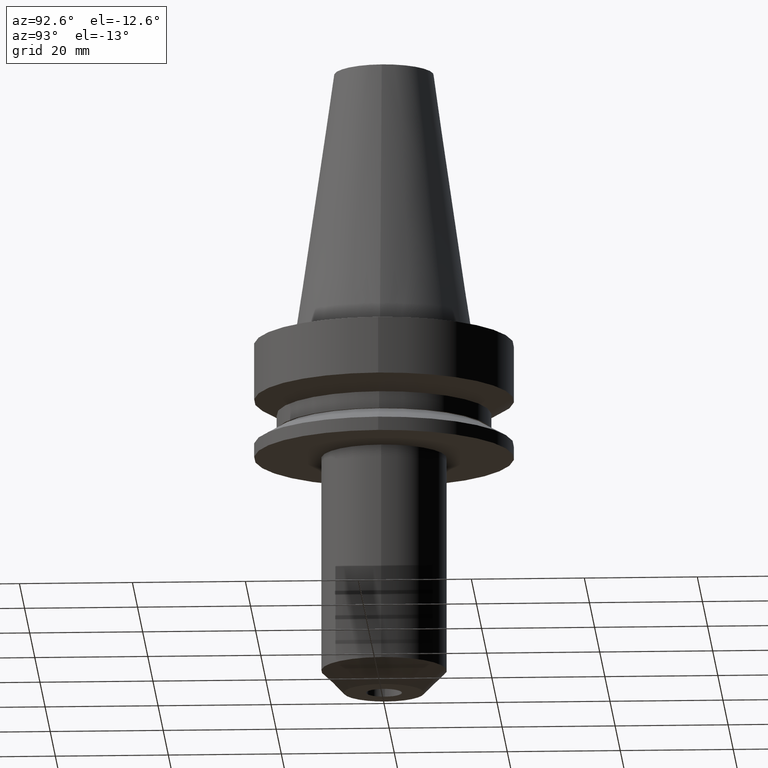
[diagram: clean part render]
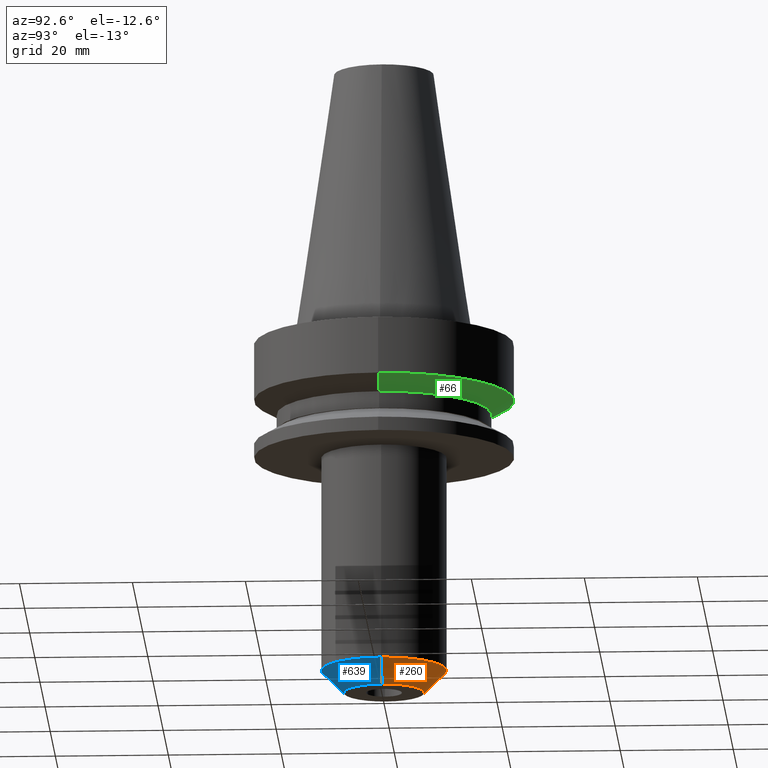
[diagram: same view with three faces highlighted in distinct colors, each labeled with its STEP entity id]
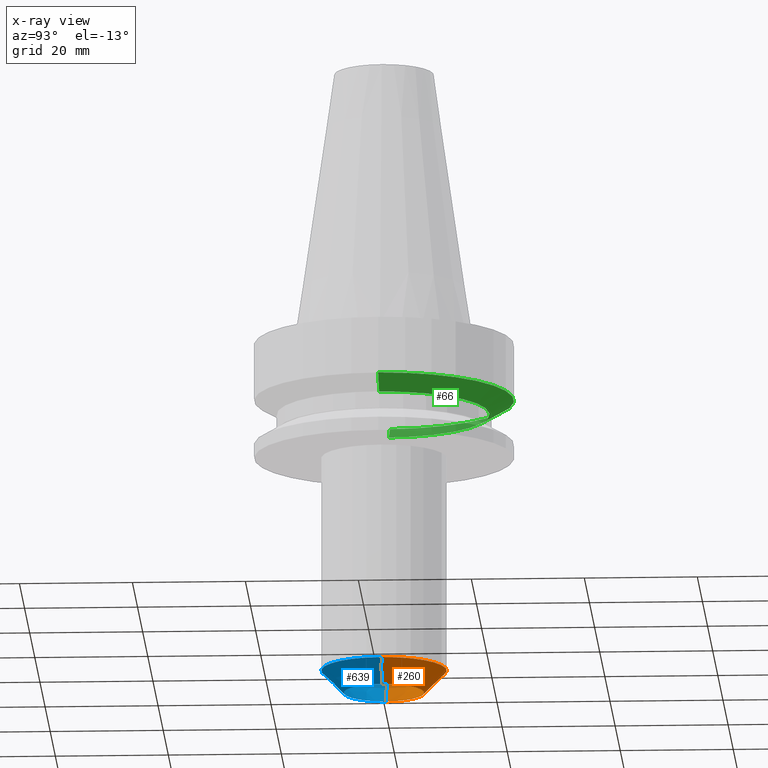
[diagram: x-ray of the same camera — body ghosted, the three highlighted faces saturated]
A machine part, auxiliary view with three faces highlighted in distinct colors.
The next image is the same camera in x-ray (body ghosted, the three faces saturated) — at least one of them is partly hidden behind the body in this view.
Their STEP definitions:

[orange] entity #260 — the highlighted conical surface has half-angle 45 deg.
#34 = EDGE_CURVE ( 'NONE', #316, #606, #647, .T. ) ;
#65 = VERTEX_POINT ( 'NONE', #102 ) ;
#71 = LINE ( 'NONE', #720, #651 ) ;
#99 = EDGE_CURVE ( 'NONE', #621, #606, #618, .T. ) ;
#102 = CARTESIAN_POINT ( 'NONE',  ( 7.112499999999986500, 0.000000000000000000, -63.50000000000000000 ) ) ;
#147 = DIRECTION ( 'NONE',  ( -0.000000000000000000, -0.000000000000000000, 1.000000000000000000 ) ) ;
#150 = DIRECTION ( 'NONE',  ( 1.000000000000000000, 0.000000000000000000, 0.000000000000000000 ) ) ;
#175 = CARTESIAN_POINT ( 'NONE',  ( 0.000000000000000000, 0.000000000000000000, -63.50000000000000000 ) ) ;
#194 = EDGE_CURVE ( 'NONE', #65, #316, #441, .T. ) ;
#196 = CARTESIAN_POINT ( 'NONE',  ( -7.112499999999986500, 1.115959395723024748E-15, -63.50000000000000000 ) ) ;
#220 = AXIS2_PLACEMENT_3D ( 'NONE', #771, #234, #523 ) ;
#231 = CONICAL_SURFACE ( 'NONE', #683, 7.112499999999986500, 0.7853981633974496113 ) ;
#234 = DIRECTION ( 'NONE',  ( -0.000000000000000000, -0.000000000000000000, 1.000000000000000000 ) ) ;
#245 = CARTESIAN_POINT ( 'NONE',  ( 11.11250000000000071, 0.000000000000000000, -59.50000000000000000 ) ) ;
#250 = DIRECTION ( 'NONE',  ( 1.000000000000000000, 0.000000000000000000, 0.000000000000000000 ) ) ;
#260 = ADVANCED_FACE ( 'NONE', ( #504 ), #231, .T. ) ;
#263 = ORIENTED_EDGE ( 'NONE', *, *, #34, .T. ) ;
#304 = AXIS2_PLACEMENT_3D ( 'NONE', #175, #714, #250 ) ;
#316 = VERTEX_POINT ( 'NONE', #196 ) ;
#324 = ORIENTED_EDGE ( 'NONE', *, *, #625, .F. ) ;
#366 = ORIENTED_EDGE ( 'NONE', *, *, #194, .T. ) ;
#441 = CIRCLE ( 'NONE', #304, 7.112499999999986500 ) ;
#504 = FACE_OUTER_BOUND ( 'NONE', #773, .T. ) ;
#523 = DIRECTION ( 'NONE',  ( 1.000000000000000000, 0.000000000000000000, 0.000000000000000000 ) ) ;
#550 = DIRECTION ( 'NONE',  ( 0.7071067811865484609, 0.000000000000000000, 0.7071067811865465735 ) ) ;
#560 = CARTESIAN_POINT ( 'NONE',  ( 0.000000000000000000, 0.000000000000000000, -63.50000000000000000 ) ) ;
#564 = ORIENTED_EDGE ( 'NONE', *, *, #99, .F. ) ;
#603 = CARTESIAN_POINT ( 'NONE',  ( -11.11250000000000071, 1.360888755552496622E-15, -59.50000000000000000 ) ) ;
#605 = VECTOR ( 'NONE', #635, 1000.000000000000000 ) ;
#606 = VERTEX_POINT ( 'NONE', #603 ) ;
#618 = CIRCLE ( 'NONE', #220, 11.11250000000000071 ) ;
#621 = VERTEX_POINT ( 'NONE', #245 ) ;
#625 = EDGE_CURVE ( 'NONE', #65, #621, #71, .T. ) ;
#635 = DIRECTION ( 'NONE',  ( -0.7071067811865484609, 8.659560562354943952E-17, 0.7071067811865465735 ) ) ;
#647 = LINE ( 'NONE', #712, #605 ) ;
#651 = VECTOR ( 'NONE', #550, 1000.000000000000000 ) ;
#683 = AXIS2_PLACEMENT_3D ( 'NONE', #560, #147, #150 ) ;
#712 = CARTESIAN_POINT ( 'NONE',  ( -7.112499999999986500, 8.710300358935532679E-16, -63.50000000000000000 ) ) ;
#714 = DIRECTION ( 'NONE',  ( -0.000000000000000000, -0.000000000000000000, 1.000000000000000000 ) ) ;
#720 = CARTESIAN_POINT ( 'NONE',  ( 7.112499999999986500, 0.000000000000000000, -63.50000000000000000 ) ) ;
#771 = CARTESIAN_POINT ( 'NONE',  ( 0.000000000000000000, 0.000000000000000000, -59.50000000000000000 ) ) ;
#773 = EDGE_LOOP ( 'NONE', ( #366, #263, #564, #324 ) ) ;

[blue] entity #639 — the highlighted conical surface has half-angle 45 deg.
#1 = ORIENTED_EDGE ( 'NONE', *, *, #625, .T. ) ;
#34 = EDGE_CURVE ( 'NONE', #316, #606, #647, .T. ) ;
#64 = CARTESIAN_POINT ( 'NONE',  ( 0.000000000000000000, 0.000000000000000000, -59.50000000000000000 ) ) ;
#65 = VERTEX_POINT ( 'NONE', #102 ) ;
#71 = LINE ( 'NONE', #720, #651 ) ;
#73 = DIRECTION ( 'NONE',  ( 1.000000000000000000, 0.000000000000000000, 0.000000000000000000 ) ) ;
#77 = DIRECTION ( 'NONE',  ( -0.000000000000000000, -0.000000000000000000, 1.000000000000000000 ) ) ;
#86 = CIRCLE ( 'NONE', #380, 11.11250000000000071 ) ;
#102 = CARTESIAN_POINT ( 'NONE',  ( 7.112499999999986500, 0.000000000000000000, -63.50000000000000000 ) ) ;
#115 = ORIENTED_EDGE ( 'NONE', *, *, #166, .T. ) ;
#166 = EDGE_CURVE ( 'NONE', #316, #65, #707, .T. ) ;
#196 = CARTESIAN_POINT ( 'NONE',  ( -7.112499999999986500, 1.115959395723024748E-15, -63.50000000000000000 ) ) ;
#235 = EDGE_CURVE ( 'NONE', #606, #621, #86, .T. ) ;
#245 = CARTESIAN_POINT ( 'NONE',  ( 11.11250000000000071, 0.000000000000000000, -59.50000000000000000 ) ) ;
#267 = AXIS2_PLACEMENT_3D ( 'NONE', #306, #609, #547 ) ;
#297 = DIRECTION ( 'NONE',  ( -0.000000000000000000, -0.000000000000000000, 1.000000000000000000 ) ) ;
#306 = CARTESIAN_POINT ( 'NONE',  ( 0.000000000000000000, 0.000000000000000000, -63.50000000000000000 ) ) ;
#316 = VERTEX_POINT ( 'NONE', #196 ) ;
#380 = AXIS2_PLACEMENT_3D ( 'NONE', #64, #297, #423 ) ;
#423 = DIRECTION ( 'NONE',  ( 1.000000000000000000, 0.000000000000000000, 0.000000000000000000 ) ) ;
#465 = AXIS2_PLACEMENT_3D ( 'NONE', #544, #77, #73 ) ;
#510 = ORIENTED_EDGE ( 'NONE', *, *, #235, .F. ) ;
#516 = EDGE_LOOP ( 'NONE', ( #613, #115, #1, #510 ) ) ;
#544 = CARTESIAN_POINT ( 'NONE',  ( 0.000000000000000000, 0.000000000000000000, -63.50000000000000000 ) ) ;
#547 = DIRECTION ( 'NONE',  ( 1.000000000000000000, 0.000000000000000000, 0.000000000000000000 ) ) ;
#550 = DIRECTION ( 'NONE',  ( 0.7071067811865484609, 0.000000000000000000, 0.7071067811865465735 ) ) ;
#603 = CARTESIAN_POINT ( 'NONE',  ( -11.11250000000000071, 1.360888755552496622E-15, -59.50000000000000000 ) ) ;
#605 = VECTOR ( 'NONE', #635, 1000.000000000000000 ) ;
#606 = VERTEX_POINT ( 'NONE', #603 ) ;
#609 = DIRECTION ( 'NONE',  ( -0.000000000000000000, -0.000000000000000000, 1.000000000000000000 ) ) ;
#613 = ORIENTED_EDGE ( 'NONE', *, *, #34, .F. ) ;
#621 = VERTEX_POINT ( 'NONE', #245 ) ;
#625 = EDGE_CURVE ( 'NONE', #65, #621, #71, .T. ) ;
#635 = DIRECTION ( 'NONE',  ( -0.7071067811865484609, 8.659560562354943952E-17, 0.7071067811865465735 ) ) ;
#639 = ADVANCED_FACE ( 'NONE', ( #662 ), #727, .T. ) ;
#647 = LINE ( 'NONE', #712, #605 ) ;
#651 = VECTOR ( 'NONE', #550, 1000.000000000000000 ) ;
#662 = FACE_OUTER_BOUND ( 'NONE', #516, .T. ) ;
#707 = CIRCLE ( 'NONE', #465, 7.112499999999986500 ) ;
#712 = CARTESIAN_POINT ( 'NONE',  ( -7.112499999999986500, 8.710300358935532679E-16, -63.50000000000000000 ) ) ;
#720 = CARTESIAN_POINT ( 'NONE',  ( 7.112499999999986500, 0.000000000000000000, -63.50000000000000000 ) ) ;
#727 = CONICAL_SURFACE ( 'NONE', #267, 7.112499999999986500, 0.7853981633974496113 ) ;

[green] entity #66 — the highlighted conical surface has half-angle 60 deg.
#2 = EDGE_CURVE ( 'NONE', #422, #85, #767, .T. ) ;
#5 = CARTESIAN_POINT ( 'NONE',  ( 23.00000000000000711, 0.000000000000000000, -10.60014200631680126 ) ) ;
#30 = DIRECTION ( 'NONE',  ( 0.8660254037844348218, 0.000000000000000000, 0.5000000000000066613 ) ) ;
#41 = DIRECTION ( 'NONE',  ( -0.000000000000000000, -0.000000000000000000, 1.000000000000000000 ) ) ;
#66 = ADVANCED_FACE ( 'NONE', ( #113 ), #96, .T. ) ;
#70 = ORIENTED_EDGE ( 'NONE', *, *, #572, .F. ) ;
#85 = VERTEX_POINT ( 'NONE', #775 ) ;
#96 = CONICAL_SURFACE ( 'NONE', #142, 18.66962701892216359, 1.047197551196590082 ) ;
#106 = DIRECTION ( 'NONE',  ( 1.000000000000000000, 0.000000000000000000, 0.000000000000000000 ) ) ;
#109 = DIRECTION ( 'NONE',  ( -0.8660254037844348218, 1.060575238724902231E-16, 0.5000000000000066613 ) ) ;
#113 = FACE_OUTER_BOUND ( 'NONE', #444, .T. ) ;
#141 = CARTESIAN_POINT ( 'NONE',  ( 0.000000000000000000, 0.000000000000000000, -13.10028401263362063 ) ) ;
#142 = AXIS2_PLACEMENT_3D ( 'NONE', #699, #586, #106 ) ;
#178 = CIRCLE ( 'NONE', #520, 18.66962701892216359 ) ;
#209 = DIRECTION ( 'NONE',  ( 1.000000000000000000, 0.000000000000000000, 0.000000000000000000 ) ) ;
#214 = VERTEX_POINT ( 'NONE', #5 ) ;
#275 = DIRECTION ( 'NONE',  ( 1.000000000000000000, 0.000000000000000000, 0.000000000000000000 ) ) ;
#298 = VERTEX_POINT ( 'NONE', #326 ) ;
#314 = CIRCLE ( 'NONE', #474, 23.00000000000000711 ) ;
#323 = LINE ( 'NONE', #571, #381 ) ;
#326 = CARTESIAN_POINT ( 'NONE',  ( 18.66962701892216359, 0.000000000000000000, -13.10028401263362063 ) ) ;
#345 = CARTESIAN_POINT ( 'NONE',  ( -18.66962701892216359, 2.551528767519355189E-15, -13.10028401263362063 ) ) ;
#352 = CARTESIAN_POINT ( 'NONE',  ( 0.000000000000000000, 0.000000000000000000, -10.60014200631680126 ) ) ;
#381 = VECTOR ( 'NONE', #30, 1000.000000000000000 ) ;
#387 = EDGE_CURVE ( 'NONE', #298, #422, #178, .T. ) ;
#409 = EDGE_CURVE ( 'NONE', #298, #214, #323, .T. ) ;
#422 = VERTEX_POINT ( 'NONE', #345 ) ;
#444 = EDGE_LOOP ( 'NONE', ( #561, #617, #70, #470 ) ) ;
#470 = ORIENTED_EDGE ( 'NONE', *, *, #409, .F. ) ;
#474 = AXIS2_PLACEMENT_3D ( 'NONE', #352, #41, #275 ) ;
#520 = AXIS2_PLACEMENT_3D ( 'NONE', #141, #575, #209 ) ;
#561 = ORIENTED_EDGE ( 'NONE', *, *, #387, .T. ) ;
#571 = CARTESIAN_POINT ( 'NONE',  ( 18.66962701892216359, 0.000000000000000000, -13.10028401263362063 ) ) ;
#572 = EDGE_CURVE ( 'NONE', #214, #85, #314, .T. ) ;
#575 = DIRECTION ( 'NONE',  ( -0.000000000000000000, -0.000000000000000000, 1.000000000000000000 ) ) ;
#586 = DIRECTION ( 'NONE',  ( -0.000000000000000000, -0.000000000000000000, 1.000000000000000000 ) ) ;
#617 = ORIENTED_EDGE ( 'NONE', *, *, #2, .T. ) ;
#656 = VECTOR ( 'NONE', #109, 1000.000000000000000 ) ;
#699 = CARTESIAN_POINT ( 'NONE',  ( 0.000000000000000000, 0.000000000000000000, -13.10028401263362063 ) ) ;
#709 = CARTESIAN_POINT ( 'NONE',  ( -18.66962701892216359, 2.286369896999797237E-15, -13.10028401263362063 ) ) ;
#767 = LINE ( 'NONE', #709, #656 ) ;
#775 = CARTESIAN_POINT ( 'NONE',  ( -23.00000000000000711, 2.816687638038913141E-15, -10.60014200631680126 ) ) ;